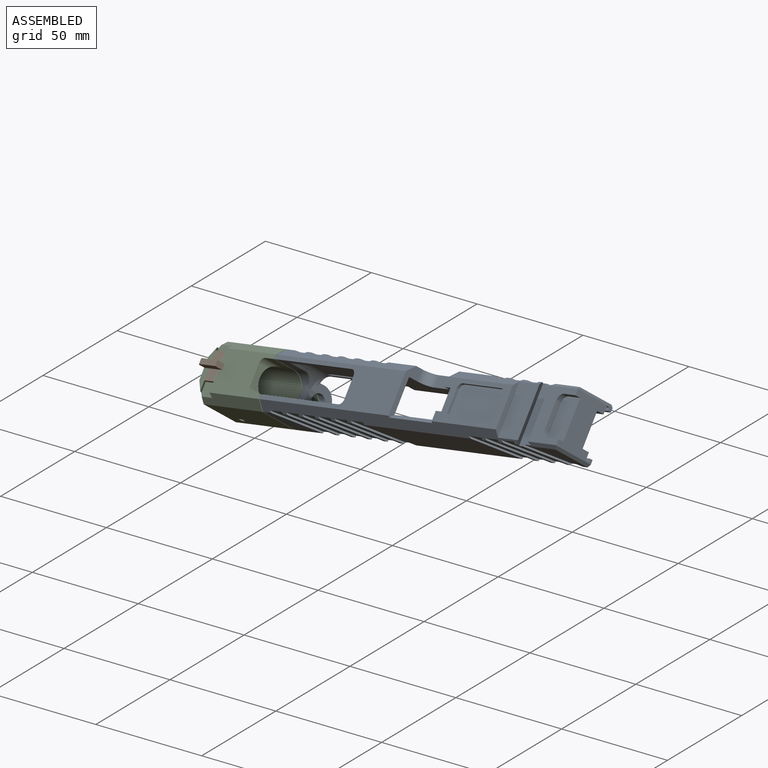
[diagram: assembled view]
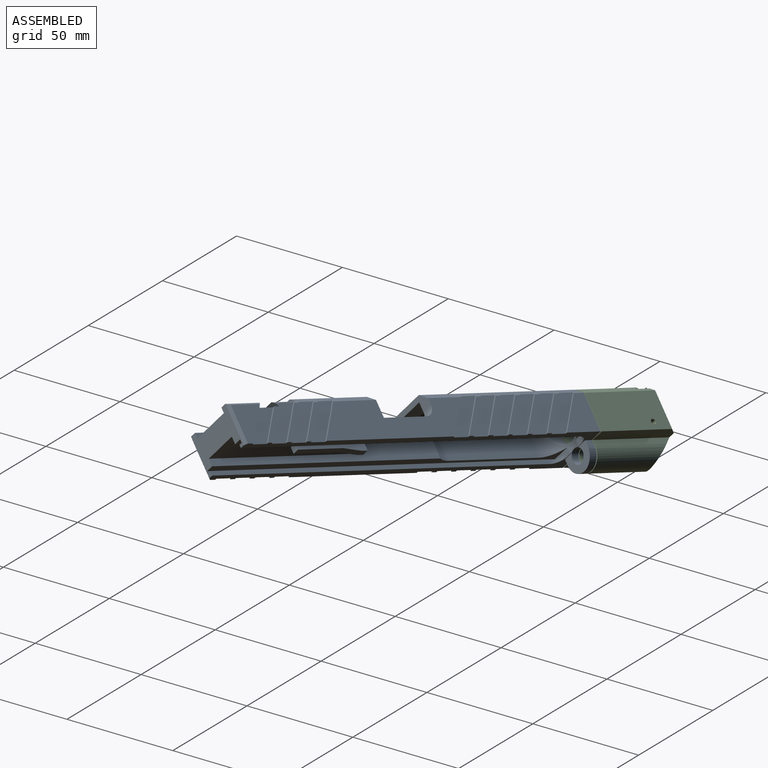
[diagram: assembled view, second angle]
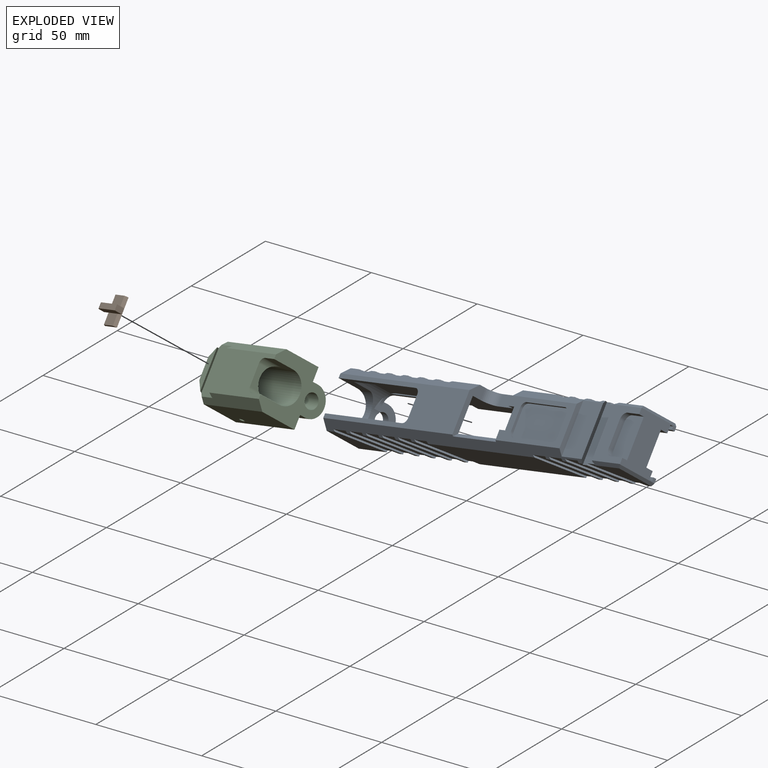
[diagram: exploded view]
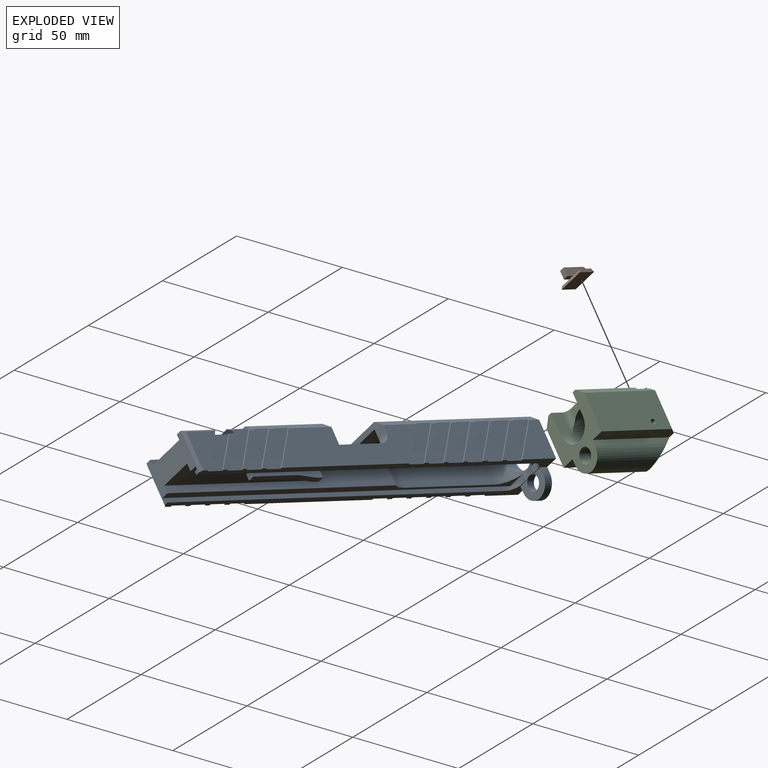
[diagram: exploded view, second angle]
ASSEMBLY  parts=3 mates=3
PART A: 169 faces, bbox 26.4x184.9x31.3 mm
  f0: plane 118.75x16mm, normal (1,0,0), area 687.8mm2, adj f7,f39,f58,f59,f61,f65,f153,f154
  f1: plane 118.75x16mm, normal (-1,0,0), area 938.8mm2, adj f2,f39,f57,f61,f62,f65,f162
  f2: cylinder r=10.01mm len=16mm, axis (0,0,-1), area 103.2mm2, adj f1,f4,f61,f162
  f3: plane 46.59x1.5mm, normal (-1,0,0), area 69.8mm2, adj f44,f161,f164,f166
  f4: plane 46.58x16mm, normal (-1,0,0), area 745.4mm2, adj f2,f5,f61,f162
  f5: cylinder r=10.01mm len=20.02mm, axis (0,0,-1), area 290.5mm2, adj f4,f6,f36,f44,f48,f49,f55,f56
  f6: plane 46.58x16mm, normal (1,0,0), area 745.4mm2, adj f5,f7,f61,f157
  f7: cylinder r=10.01mm len=16mm, axis (0,0,-1), area 103.2mm2, adj f0,f6,f61,f157
  f8: plane 52.72x3.81mm, normal (-0.71,0,0.71), area 215.5mm2, adj f9,f23,f24,f25,f26,f38,f59,f69
  f9: plane 40.21x18.8mm, normal (0,0,1), area 293.3mm2, adj f8,f40,f43,f45,f46,f57,f59,f70
  f10: plane 24.89x2.67mm, normal (0,-0.87,-0.5), area 76.2mm2, adj f35,f37,f41,f71,f78,f148
  f11: plane 17.68x14.92mm, normal (1,0,0), area 44.9mm2, adj f40,f44,f123,f129
  f12: plane 79.12x17.68mm, normal (1,0,0), area 1180mm2, adj f40,f44,f122,f143
  f13: plane 17.68x14.92mm, normal (1,0,0), area 42.7mm2, adj f37,f38,f40,f44,f125,f150
  f14: plane 17.68x14.92mm, normal (1,0,0), area 44.9mm2, adj f40,f44,f126,f128
  f15: plane 17.68x14.92mm, normal (1,0,0), area 44.9mm2, adj f40,f44,f131,f141
  f16: plane 17.68x14.92mm, normal (1,0,0), area 44.9mm2, adj f40,f44,f132,f134
  f17: plane 17.68x14.92mm, normal (1,0,0), area 44.9mm2, adj f40,f44,f135,f146
  f18: plane 17.68x14.92mm, normal (1,0,0), area 44.9mm2, adj f40,f44,f137,f144
  f19: plane 17.68x14.92mm, normal (1,0,0), area 44.9mm2, adj f40,f44,f138,f140
  f20: plane 17.68x17.59mm, normal (1,0,0), area 201.5mm2, adj f40,f44,f50,f147
  f21: plane 17.68x15.12mm, normal (1,0,0), area 157.8mm2, adj f41,f44,f149,f155
  f22: plane 81.07x18.8mm, normal (0,0,1), area 770.5mm2, adj f34,f40,f47,f50,f55,f56,f58,f119
  f23: plane 17.68x14.92mm, normal (-1,0,0), area 44.9mm2, adj f8,f36,f102,f107
  f24: plane 79.12x17.68mm, normal (-1,0,0), area 964.7mm2, adj f8,f34,f36,f58,f59,f86,f108,f153
  f25: plane 17.68x14.92mm, normal (-1,0,0), area 42.7mm2, adj f8,f36,f37,f38,f79,f104
  f26: plane 17.68x14.92mm, normal (-1,0,0), area 44.9mm2, adj f8,f36,f101,f105
  f27: plane 17.68x14.92mm, normal (-1,0,0), area 44.9mm2, adj f34,f36,f90,f98
  f28: plane 17.68x14.92mm, normal (-1,0,0), area 44.9mm2, adj f34,f36,f95,f99
  f29: plane 17.68x14.92mm, normal (-1,0,0), area 44.9mm2, adj f34,f36,f83,f96
  f30: plane 17.68x14.92mm, normal (-1,0,0), area 44.9mm2, adj f34,f36,f87,f92
  f31: plane 17.68x14.92mm, normal (-1,0,0), area 44.9mm2, adj f34,f36,f89,f93
  f32: plane 17.68x17.59mm, normal (-1,0,0), area 201.5mm2, adj f34,f36,f50,f84
  f33: plane 17.68x15.12mm, normal (-1,0,0), area 157.8mm2, adj f35,f36,f80,f156
  f34: plane 81.07x3.81mm, normal (-0.71,0,0.71), area 387.6mm2, adj f22,f24,f27,f28,f29,f30,f31,f32
  f35: plane 17.62x1.37mm, normal (-0.71,0,0.71), area 31.8mm2, adj f10,f33,f39,f71,f78,f80,f156
  f36: plane 184.86x11.18mm, normal (0,0,-1), area 551.8mm2, adj f5,f23,f24,f25,f26,f27,f28,f29
  f37: plane 26.42x9.53mm, normal (0,0,1), area 240.9mm2, adj f10,f13,f25,f38,f78,f79,f148,f150
  f38: plane 26.42x2.67mm, normal (0,0.87,-0.5), area 79.2mm2, adj f8,f13,f25,f37,f40,f69,f81,f82
  f39: plane 23.88x19.05mm, normal (0,1,0), area 287.9mm2, adj f0,f1,f35,f36,f41,f44,f60,f65
  f40: plane 160.8x3.81mm, normal (0.71,0,0.71), area 727.7mm2, adj f9,f11,f12,f13,f14,f15,f16,f17
  f41: plane 17.62x1.37mm, normal (0.71,0,0.71), area 31.8mm2, adj f10,f21,f39,f71,f148,f149,f155
  f42: plane 3x3mm, normal (0,1,0), area 9mm2, adj f63,f64,f65,f68
  f43: plane 19.51x10.01mm, normal (0,-1,0), area 163.7mm2, adj f9,f45,f46,f63,f64,f65,f66
  f44: plane 184.86x11.18mm, normal (0,0,-1), area 551.5mm2, adj f3,f5,f11,f12,f13,f14,f15,f16
  f45: plane 15.01x3.51mm, normal (1,0,0), area 52.6mm2, adj f9,f43,f59,f65
  f46: plane 15.01x3.51mm, normal (-1,0,0), area 52.6mm2, adj f9,f43,f57,f65
  f47: plane 9.8x2.49mm, normal (0,-1,0), area 24.4mm2, adj f22,f61,f119,f120
  f48: cylinder r=7.44mm len=14.88mm, axis (0,1,0), area 118.8mm2, adj f5,f50,f55,f56
  f49: cylinder r=3.44mm len=6.88mm, axis (0,1,0), area 76.1mm2, adj f5,f36,f44,f50,f54
  f50: plane 31.27x26.42mm, normal (0,-1,0), area 390.1mm2, adj f20,f22,f32,f34,f36,f40,f44,f48
  f51: plane 3.51x2.78mm, normal (-1,0,0), area 9.7mm2, adj f36,f50,f52,f54
  f52: cylinder r=7mm len=14mm, axis (0,1,0), area 77.1mm2, adj f50,f51,f53,f54
  f53: plane 3.51x2.78mm, normal (1,0,0), area 9.7mm2, adj f44,f50,f52,f54
  f54: plane 14x9.78mm, normal (0,1,0), area 80.5mm2, adj f36,f44,f49,f51,f52,f53
  f55: plane 48.26x10.39mm, normal (1,0,0), area 174mm2, adj f5,f22,f48,f50,f61,f120
  f56: plane 48.26x10.39mm, normal (-1,0,0), area 174mm2, adj f5,f22,f48,f50,f61,f119
  f57: plane 15.01x4.94mm, normal (0,-1,0), area 47.8mm2, adj f1,f9,f40,f46,f62,f65
  f58: plane 23.15x6.91mm, normal (0,1,0), area 71.3mm2, adj f0,f22,f24,f34,f40,f61,f62,f154
  f59: plane 15.01x8.2mm, normal (0,-1,0), area 100.2mm2, adj f0,f8,f9,f24,f45,f65,f153
  f60: plane 175.9x1.5mm, normal (1,0,0), area 263.6mm2, adj f36,f39,f160,f167
  f61: plane 74.25x20.02mm, normal (0,0,-1), area 755.8mm2, adj f0,f1,f2,f4,f5,f6,f7,f47
  f62: plane 27x1.94mm, normal (-0.71,0,0.71), area 74.2mm2, adj f1,f40,f57,f58
  f63: plane 35.51x4.5mm, normal (1,0,0), area 117.7mm2, adj f42,f43,f65,f66,f67,f68
  f64: plane 35.51x4.5mm, normal (-1,0,0), area 117.7mm2, adj f42,f43,f65,f66,f67,f68
  f65: plane 76.79x16mm, normal (0,0,-1), area 1087.2mm2, adj f0,f1,f39,f42,f43,f45,f46,f57
  f66: plane 3x3mm, normal (0,0,-1), area 9mm2, adj f43,f63,f64,f67
  f67: plane 8.99x3mm, normal (0,0.16,-0.99), area 27.3mm2, adj f63,f64,f66,f68
  f68: plane 23.52x3mm, normal (0,0,-1), area 70.5mm2, adj f42,f63,f64,f67
  f69: plane 23.67x12.51mm, normal (0,0,1), area 296.2mm2, adj f8,f38,f40,f70
  f70: plane 23.67x2.44mm, normal (0,1,0), area 51.8mm2, adj f8,f9,f40,f69
  f71: plane 23.67x17.62mm, normal (0,0,1), area 229.6mm2, adj f10,f35,f39,f41,f72,f73,f74,f76
  f72: plane 7.24x2.54mm, normal (1,0,0), area 18.4mm2, adj f39,f71,f75,f76
  f73: plane 12.07x2.54mm, normal (0,1,0), area 30.6mm2, adj f71,f75,f76,f77
  f74: plane 7.24x2.54mm, normal (-1,0,0), area 18.4mm2, adj f39,f71,f75,f77
  f75: plane 18.42x10.41mm, normal (0,0,1), area 187.4mm2, adj f39,f72,f73,f74,f76,f77
  f76: cylinder r=3.17mm len=3.18mm, axis (0,0,-1), area 12.7mm2, adj f71,f72,f73,f75
  f77: cylinder r=3.17mm len=3.18mm, axis (0,0,1), area 12.7mm2, adj f71,f73,f74,f75
  f78: plane 19.09x18.44mm, normal (-1,0,0), area 125.8mm2, adj f10,f35,f36,f37,f79,f80
  f79: plane 16.38x11.47mm, normal (0,0.82,0.57), area 15.2mm2, adj f25,f36,f37,f78
  f80: plane 18.44x12.91mm, normal (0,-0.82,-0.57), area 16.8mm2, adj f33,f35,f36,f78
  f81: plane 0.13x0.1mm, normal (-1,0,0), area 0mm2, adj f8,f38,f82
  f82: plane 0.1x0.1mm, normal (0,0.82,0.57), area 0mm2, adj f8,f38,f81
  f83: plane 18.44x12.91mm, normal (0,-0.82,-0.57), area 16.8mm2, adj f29,f34,f36,f85
  f84: plane 18.44x12.91mm, normal (0,0.82,0.57), area 16.8mm2, adj f32,f34,f36,f85
  f85: plane 20.53x18.44mm, normal (-1,0,0), area 140.5mm2, adj f34,f36,f83,f84
  f86: plane 18.44x12.91mm, normal (0,-0.82,-0.57), area 16.8mm2, adj f24,f34,f36,f88
  f87: plane 18.44x12.91mm, normal (0,0.82,0.57), area 16.8mm2, adj f30,f34,f36,f88
  f88: plane 20.53x18.44mm, normal (-1,0,0), area 140.5mm2, adj f34,f36,f86,f87
  f89: plane 18.44x12.91mm, normal (0,-0.82,-0.57), area 16.8mm2, adj f31,f34,f36,f91
  f90: plane 18.44x12.91mm, normal (0,0.82,0.57), area 16.8mm2, adj f27,f34,f36,f91
  f91: plane 20.53x18.44mm, normal (-1,0,0), area 140.5mm2, adj f34,f36,f89,f90
  f92: plane 18.44x12.91mm, normal (0,-0.82,-0.57), area 16.8mm2, adj f30,f34,f36,f94
  f93: plane 18.44x12.91mm, normal (0,0.82,0.57), area 16.8mm2, adj f31,f34,f36,f94
  f94: plane 20.53x18.44mm, normal (-1,0,0), area 140.5mm2, adj f34,f36,f92,f93
  f95: plane 18.44x12.91mm, normal (0,-0.82,-0.57), area 16.8mm2, adj f28,f34,f36,f97
  f96: plane 18.44x12.91mm, normal (0,0.82,0.57), area 16.8mm2, adj f29,f34,f36,f97
  f97: plane 20.53x18.44mm, normal (-1,0,0), area 140.5mm2, adj f34,f36,f95,f96
  f98: plane 18.44x12.91mm, normal (0,-0.82,-0.57), area 16.8mm2, adj f27,f34,f36,f100
  f99: plane 18.44x12.91mm, normal (0,0.82,0.57), area 16.8mm2, adj f28,f34,f36,f100
  f100: plane 20.53x18.44mm, normal (-1,0,0), area 140.5mm2, adj f34,f36,f98,f99
  f101: plane 18.44x12.91mm, normal (0,-0.82,-0.57), area 16.8mm2, adj f8,f26,f36,f103
  f102: plane 18.44x12.91mm, normal (0,0.82,0.57), area 16.8mm2, adj f8,f23,f36,f103
  f103: plane 20.53x18.44mm, normal (-1,0,0), area 140.5mm2, adj f8,f36,f101,f102
  f104: plane 18.44x12.91mm, normal (0,-0.82,-0.57), area 16.8mm2, adj f8,f25,f36,f106
  f105: plane 18.44x12.91mm, normal (0,0.82,0.57), area 16.8mm2, adj f8,f26,f36,f106
  f106: plane 20.53x18.44mm, normal (-1,0,0), area 140.5mm2, adj f8,f36,f104,f105
  f107: plane 18.44x12.91mm, normal (0,-0.82,-0.57), area 16.8mm2, adj f8,f23,f36,f109
  f108: plane 18.44x12.91mm, normal (0,0.82,0.57), area 16.8mm2, adj f8,f24,f36,f109
  f109: plane 20.53x18.44mm, normal (-1,0,0), area 140.5mm2, adj f8,f36,f107,f108
  f110: plane 9.8x1.27mm, normal (0,-1,0), area 12.5mm2, adj f9,f114,f115,f118
  f111: plane 24.01x1.27mm, normal (1,0,0), area 30.5mm2, adj f9,f114,f115,f116
  f112: plane 9.8x1.27mm, normal (0,1,0), area 12.5mm2, adj f9,f114,f116,f117
  f113: plane 24.01x1.27mm, normal (-1,0,0), area 30.5mm2, adj f9,f114,f117,f118
  f114: plane 29.09x14.88mm, normal (0,0,1), area 427.4mm2, adj f110,f111,f112,f113,f115,f116,f117,f118
  f115: cylinder r=2.54mm len=2.54mm, axis (0,0,1), area 5.1mm2, adj f9,f110,f111,f114
  f116: cylinder r=2.54mm len=2.54mm, axis (0,0,-1), area 5.1mm2, adj f9,f111,f112,f114
  f117: cylinder r=2.54mm len=2.54mm, axis (0,0,1), area 5.1mm2, adj f9,f112,f113,f114
  f118: cylinder r=2.54mm len=2.54mm, axis (0,0,-1), area 5.1mm2, adj f9,f110,f113,f114
  f119: cylinder r=2.54mm len=2.54mm, axis (0,0,-1), area 9.9mm2, adj f22,f47,f56,f61
  f120: cylinder r=2.54mm len=2.54mm, axis (0,0,1), area 9.9mm2, adj f22,f47,f55,f61
  f121: plane 20.53x18.44mm, normal (1,0,0), area 140.5mm2, adj f40,f44,f122,f123
  f122: plane 18.44x12.91mm, normal (0,0.82,0.57), area 16.8mm2, adj f12,f40,f44,f121
  f123: plane 18.44x12.91mm, normal (0,-0.82,-0.57), area 16.8mm2, adj f11,f40,f44,f121
  f124: plane 20.53x18.44mm, normal (1,0,0), area 140.5mm2, adj f40,f44,f125,f126
  f125: plane 18.44x12.91mm, normal (0,-0.82,-0.57), area 16.8mm2, adj f13,f40,f44,f124
  f126: plane 18.44x12.91mm, normal (0,0.82,0.57), area 16.8mm2, adj f14,f40,f44,f124
  f127: plane 20.53x18.44mm, normal (1,0,0), area 140.5mm2, adj f40,f44,f128,f129
  f128: plane 18.44x12.91mm, normal (0,-0.82,-0.57), area 16.8mm2, adj f14,f40,f44,f127
  f129: plane 18.44x12.91mm, normal (0,0.82,0.57), area 16.8mm2, adj f11,f40,f44,f127
  f130: plane 20.53x18.44mm, normal (1,0,0), area 140.5mm2, adj f40,f44,f131,f132
  f131: plane 18.44x12.91mm, normal (0,-0.82,-0.57), area 16.8mm2, adj f15,f40,f44,f130
  f132: plane 18.44x12.91mm, normal (0,0.82,0.57), area 16.8mm2, adj f16,f40,f44,f130
  f133: plane 20.53x18.44mm, normal (1,0,0), area 140.5mm2, adj f40,f44,f134,f135
  f134: plane 18.44x12.91mm, normal (0,-0.82,-0.57), area 16.8mm2, adj f16,f40,f44,f133
  f135: plane 18.44x12.91mm, normal (0,0.82,0.57), area 16.8mm2, adj f17,f40,f44,f133
  f136: plane 20.53x18.44mm, normal (1,0,0), area 140.5mm2, adj f40,f44,f137,f138
  f137: plane 18.44x12.91mm, normal (0,-0.82,-0.57), area 16.8mm2, adj f18,f40,f44,f136
  f138: plane 18.44x12.91mm, normal (0,0.82,0.57), area 16.8mm2, adj f19,f40,f44,f136
  f139: plane 20.53x18.44mm, normal (1,0,0), area 140.5mm2, adj f40,f44,f140,f141
  f140: plane 18.44x12.91mm, normal (0,-0.82,-0.57), area 16.8mm2, adj f19,f40,f44,f139
  f141: plane 18.44x12.91mm, normal (0,0.82,0.57), area 16.8mm2, adj f15,f40,f44,f139
  f142: plane 20.53x18.44mm, normal (1,0,0), area 140.5mm2, adj f40,f44,f143,f144
  f143: plane 18.44x12.91mm, normal (0,-0.82,-0.57), area 16.8mm2, adj f12,f40,f44,f142
  f144: plane 18.44x12.91mm, normal (0,0.82,0.57), area 16.8mm2, adj f18,f40,f44,f142
  f145: plane 20.53x18.44mm, normal (1,0,0), area 140.5mm2, adj f40,f44,f146,f147
  f146: plane 18.44x12.91mm, normal (0,-0.82,-0.57), area 16.8mm2, adj f17,f40,f44,f145
  f147: plane 18.44x12.91mm, normal (0,0.82,0.57), area 16.8mm2, adj f20,f40,f44,f145
  f148: plane 19.09x18.44mm, normal (1,0,0), area 125.8mm2, adj f10,f37,f41,f44,f149,f150
  f149: plane 18.44x12.91mm, normal (0,-0.82,-0.57), area 16.8mm2, adj f21,f41,f44,f148
  f150: plane 16.38x11.47mm, normal (0,0.82,0.57), area 15.2mm2, adj f13,f37,f44,f148
  f151: plane 0.13x0.1mm, normal (1,0,0), area 0mm2, adj f38,f40,f152
  f152: plane 0.1x0.1mm, normal (0,0.82,0.57), area 0mm2, adj f38,f40,f151
  f153: plane 21.92x5.21mm, normal (0,0,1), area 114.1mm2, adj f0,f24,f59,f154
  f154: cylinder r=5.08mm len=5.21mm, axis (1,0,0), area 41.6mm2, adj f0,f24,f58,f153
  f155: plane 18.95x1.27mm, normal (0.71,0.71,0), area 32.9mm2, adj f21,f39,f41,f44
  f156: plane 18.95x1.27mm, normal (-0.71,0.71,0), area 32.9mm2, adj f33,f35,f36,f39
  f157: plane 180.98x8.77mm, normal (0,0,-1), area 531.7mm2, adj f0,f5,f6,f7,f39,f158,f159
  f158: plane 8.77x3mm, normal (0,1,0), area 16.4mm2, adj f5,f36,f157,f159,f160,f167
  f159: plane 180.98x1.5mm, normal (1,0,0), area 271.2mm2, adj f39,f157,f158,f160
  f160: plane 180.98x6.58mm, normal (0,0,1), area 276.7mm2, adj f39,f60,f158,f159,f167
  f161: plane 4.55x1.5mm, normal (-1,0,0), area 6.8mm2, adj f3,f44,f166,f168
  f162: plane 180.98x8.77mm, normal (0,0,-1), area 532.2mm2, adj f1,f2,f4,f5,f39,f163,f165
  f163: plane 8.77x3mm, normal (0,1,0), area 16.4mm2, adj f5,f44,f162,f165,f166,f168
  f164: plane 124.77x1.5mm, normal (-1,0,0), area 187mm2, adj f3,f39,f44,f166
  f165: plane 180.98x1.5mm, normal (-1,0,0), area 271.2mm2, adj f39,f162,f163,f166
  f166: plane 180.98x6.58mm, normal (0,0,1), area 276.9mm2, adj f3,f39,f161,f163,f164,f165,f168
  f167: cylinder r=5.08mm len=5.08mm, axis (0,0,1), area 12mm2, adj f36,f60,f158,f160
  f168: cylinder r=5.08mm len=5.08mm, axis (0,0,-1), area 12mm2, adj f44,f161,f163,f166
PART B: 15 faces, bbox 11.1x12.7x5.5 mm
  f0: plane 2.75x2.54mm, normal (0,0,-1), area 7mm2, adj f4,f7,f10,f13
  f1: plane 3.94x2.54mm, normal (1,0,0), area 10mm2, adj f2,f3,f10,f13
  f2: plane 2.75x2.54mm, normal (0,0,-1), area 7mm2, adj f1,f6,f10,f13
  f3: plane 9.57x2.54mm, normal (0,0,1), area 24.3mm2, adj f1,f10,f13,f14
  f4: plane 12.7x1.52mm, normal (-0.87,0,0.5), area 22.3mm2, adj f0,f5,f8,f9,f11,f12
  f5: plane 12.7x7.37mm, normal (0,0,-1), area 93.5mm2, adj f4,f6,f8,f9
  f6: plane 12.7x1.52mm, normal (0.87,0,0.5), area 22.3mm2, adj f2,f5,f8,f9,f11,f12
  f7: plane 2.54x2.41mm, normal (-1,0,0), area 6.1mm2, adj f0,f10,f13,f14
  f8: plane 7.37x1.52mm, normal (0,-1,0), area 9.9mm2, adj f4,f5,f6,f12
  f9: plane 7.37x1.52mm, normal (0,1,0), area 9.9mm2, adj f4,f5,f6,f11
  f10: plane 11.1x3.94mm, normal (0,1,0), area 43.2mm2, adj f0,f1,f2,f3,f7,f11,f14
  f11: plane 5.61x5.08mm, normal (0,0,1), area 28.5mm2, adj f4,f6,f9,f10
  f12: plane 5.61x5.08mm, normal (0,0,1), area 28.5mm2, adj f4,f6,f8,f13
  f13: plane 11.1x3.94mm, normal (0,-1,0), area 43.2mm2, adj f0,f1,f2,f3,f7,f12,f14
  f14: cylinder r=1.52mm len=2.54mm, axis (0,1,0), area 6.1mm2, adj f3,f7,f10,f13
PART C: 29 faces, bbox 26.4x39.9x31.3 mm
  f0: cylinder r=7.44mm len=39.93mm, axis (0,-1,0), area 1670.2mm2, adj f1,f3,f13,f14,f15,f22,f27,f28
  f1: plane 31.25x26.42mm, normal (0,1,0), area 389.9mm2, adj f0,f2,f5,f6,f7,f8,f9,f10
  f2: plane 31.02x18.8mm, normal (0,0,1), area 464.1mm2, adj f1,f13,f14,f15,f17,f18,f19,f27
  f3: plane 21.49x20.07mm, normal (0,-1,0), area 229mm2, adj f0,f4,f6,f10,f12,f16,f23,f24
  f4: plane 18.44x3.05mm, normal (0,0,1), area 43.1mm2, adj f3,f21,f23,f26
  f5: plane 36.75x17.68mm, normal (-1,0,0), area 645.3mm2, adj f1,f6,f17,f22,f25
  f6: plane 39.93x6.21mm, normal (0,0,-1), area 242.9mm2, adj f1,f3,f5,f7,f25
  f7: plane 39.93x2.77mm, normal (-1,0,0), area 106.7mm2, adj f1,f6,f8,f16
  f8: cylinder r=7mm len=37.16mm, axis (0,-1,0), area 719mm2, adj f1,f7,f9,f16
  f9: plane 39.93x2.77mm, normal (1,0,0), area 106.7mm2, adj f1,f8,f10,f16
  f10: plane 39.93x6.21mm, normal (0,0,-1), area 242.9mm2, adj f1,f3,f9,f11,f24
  f11: plane 36.75x17.68mm, normal (1,0,0), area 645.3mm2, adj f1,f10,f18,f22,f24
  f12: cylinder r=3.44mm len=39.93mm, axis (0,-1,0), area 801.6mm2, adj f1,f3,f16
  f13: cylinder r=2.54mm len=10.39mm, axis (0,0,1), area 29.1mm2, adj f0,f2,f14,f28
  f14: plane 9.8x4.79mm, normal (0,1,0), area 34.6mm2, adj f0,f2,f13,f15
  f15: cylinder r=2.54mm len=10.39mm, axis (0,0,1), area 29.1mm2, adj f0,f2,f14,f27
  f16: plane 14x9.77mm, normal (0,-0.71,-0.71), area 113.6mm2, adj f3,f7,f8,f9,f12
  f17: plane 36.75x3.81mm, normal (-0.71,0,0.71), area 184.7mm2, adj f1,f2,f5,f19,f20,f26
  f18: plane 36.75x3.81mm, normal (0.71,0,0.71), area 184.7mm2, adj f1,f2,f11,f19,f20,f23
  f19: plane 21.84x1.52mm, normal (0,-0.87,-0.5), area 35.8mm2, adj f2,f17,f18,f20
  f20: plane 21.84x7.62mm, normal (0,0,1), area 165mm2, adj f17,f18,f19,f21,f23,f26
  f21: plane 19x1.52mm, normal (0,0.87,-0.5), area 32.9mm2, adj f4,f20,f23,f26
  f22: cylinder r=1.19mm len=26.42mm, axis (-1,0,0), area 173.8mm2, adj f0,f5,f11
  f23: plane 8.3x5.13mm, normal (0.5,-0.71,0.5), area 26.6mm2, adj f3,f4,f18,f20,f21,f24
  f24: plane 17.68x3.18mm, normal (0.71,-0.71,0), area 76.4mm2, adj f3,f10,f11,f23
  f25: plane 17.68x3.18mm, normal (-0.71,-0.71,0), area 76.4mm2, adj f3,f5,f6,f26
  f26: plane 8.3x5.13mm, normal (-0.5,-0.71,0.5), area 26.6mm2, adj f3,f4,f17,f20,f21,f25
  f27: plane 10.39x5.64mm, normal (1,0,0), area 58.6mm2, adj f0,f1,f2,f15
  f28: plane 10.39x5.64mm, normal (-1,0,0), area 58.6mm2, adj f0,f1,f2,f13
PLACE A rot(axis=(0.51,0.21,-0.84),108.1deg) t=(-143.37,18.84,-39.08)mm
PLACE B rot(axis=(0.91,-0.39,-0.14),53.3deg) t=(-264.98,50.21,-60.61)mm
PLACE C rot(axis=(0.51,0.21,-0.84),108.1deg) t=(-267.04,52.76,-73.5)mm
MATE planar B.f5 <-> C.f20  axis (0.36,0.71,-0.61) through (-268.47,51.17,-61.58)mm
MATE planar C.f2 <-> A.f22  axis (-0.36,-0.71,0.61) through (-233.4,30.3,-62.47)mm
MATE planar B.f4 <-> C.f21  axis (-0.99,-0.13,0.08) through (-268.15,46.34,-65.78)mm
